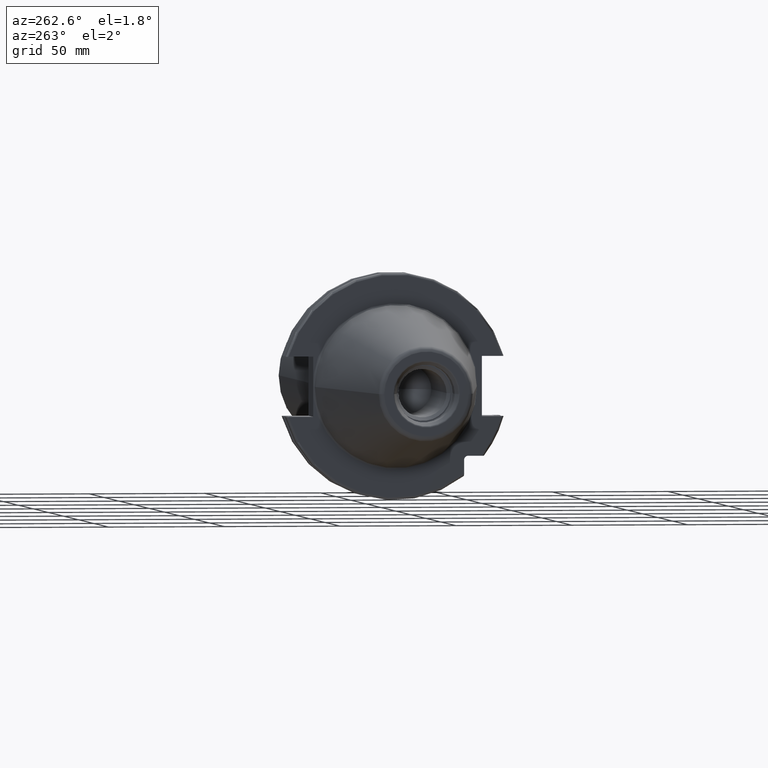
[diagram: clean part render]
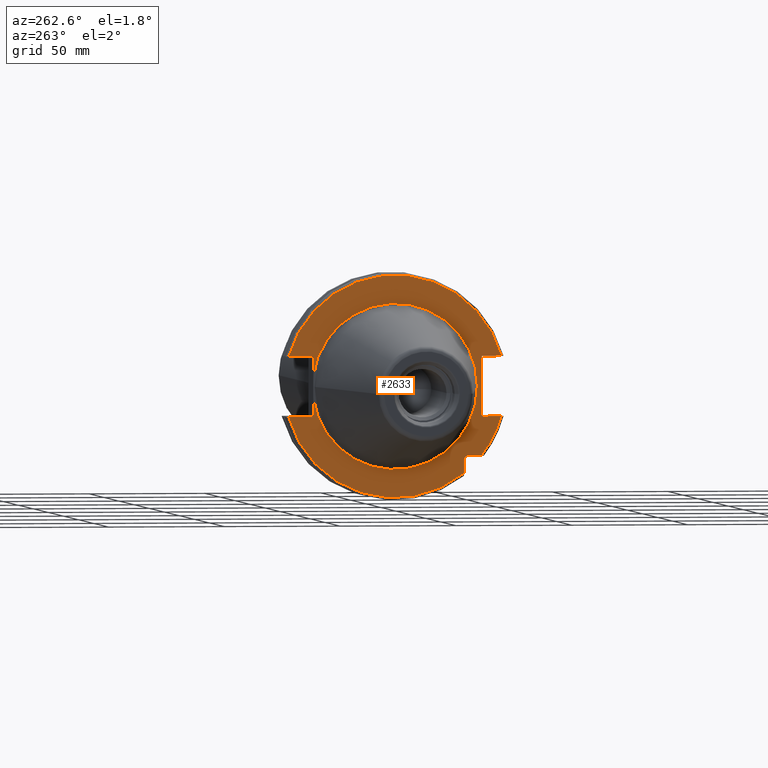
[diagram: same view with one face highlighted and labeled with its STEP entity id]
A machine part, auxiliary view. The second image highlights one B-rep face of the part: STEP entity #2633.
In plain terms, the highlighted planar face has unit normal (1, 0, 0).
Its self-contained STEP definition (entity closure, byte-faithful):
#117=CARTESIAN_POINT('',(3.2E0,0.E0,0.E0));
#118=DIRECTION('',(-1.E0,0.E0,0.E0));
#119=DIRECTION('',(0.E0,9.922698524245E-1,-1.240989120402E-1));
#120=AXIS2_PLACEMENT_3D('',#117,#118,#119);
#694=DIRECTION('',(0.E0,-1.E0,0.E0));
#695=VECTOR('',#694,5.653810627237E0);
#696=CARTESIAN_POINT('',(3.2E0,-3.16E1,-2.985E1));
#697=LINE('',#696,#695);
#698=DIRECTION('',(0.E0,0.E0,1.E0));
#699=VECTOR('',#698,5.653810627237E0);
#700=CARTESIAN_POINT('',(3.2E0,-2.985E1,-3.725381062724E1));
#701=LINE('',#700,#699);
#702=CARTESIAN_POINT('',(3.2E0,0.E0,0.E0));
#703=DIRECTION('',(-1.E0,0.E0,0.E0));
#704=DIRECTION('',(0.E0,9.627964123359E-1,-2.702278083268E-1));
#705=AXIS2_PLACEMENT_3D('',#702,#703,#704);
#707=DIRECTION('',(0.E0,-1.E0,0.E0));
#708=VECTOR('',#707,1.066149373389E1);
#709=CARTESIAN_POINT('',(3.2E0,4.596149373389E1,-1.29E1));
#710=LINE('',#709,#708);
#711=DIRECTION('',(0.E0,0.E0,-1.E0));
#712=VECTOR('',#711,8.485181204172E0);
#713=CARTESIAN_POINT('',(3.2E0,3.53E1,-4.414818795828E0));
#714=LINE('',#713,#712);
#715=DIRECTION('',(0.E0,0.E0,-1.E0));
#716=VECTOR('',#715,8.485181204172E0);
#717=CARTESIAN_POINT('',(3.2E0,3.53E1,1.29E1));
#718=LINE('',#717,#716);
#719=DIRECTION('',(0.E0,-1.E0,0.E0));
#720=VECTOR('',#719,1.066149373389E1);
#721=CARTESIAN_POINT('',(3.2E0,4.596149373389E1,1.29E1));
#722=LINE('',#721,#720);
#723=CARTESIAN_POINT('',(3.2E0,0.E0,0.E0));
#724=DIRECTION('',(1.E0,0.E0,0.E0));
#725=DIRECTION('',(0.E0,9.627964123359E-1,2.702278083268E-1));
#726=AXIS2_PLACEMENT_3D('',#723,#724,#725);
#728=DIRECTION('',(0.E0,1.E0,0.E0));
#729=VECTOR('',#728,8.461493733886E0);
#730=CARTESIAN_POINT('',(3.2E0,-4.596149373389E1,1.29E1));
#731=LINE('',#730,#729);
#732=DIRECTION('',(0.E0,0.E0,1.E0));
#733=VECTOR('',#732,2.58E1);
#734=CARTESIAN_POINT('',(3.2E0,-3.75E1,-1.29E1));
#735=LINE('',#734,#733);
#736=DIRECTION('',(0.E0,1.E0,0.E0));
#737=VECTOR('',#736,8.461493733886E0);
#738=CARTESIAN_POINT('',(3.2E0,-4.596149373389E1,-1.29E1));
#739=LINE('',#738,#737);
#740=CARTESIAN_POINT('',(3.2E0,0.E0,0.E0));
#741=DIRECTION('',(-1.E0,0.E0,0.E0));
#742=DIRECTION('',(0.E0,-7.803888060170E-1,-6.252945797329E-1));
#743=AXIS2_PLACEMENT_3D('',#740,#741,#742);
#754=CARTESIAN_POINT('',(3.2E0,-3.16E1,-3.16E1));
#755=DIRECTION('',(1.E0,0.E0,0.E0));
#756=DIRECTION('',(0.E0,1.E0,0.E0));
#757=AXIS2_PLACEMENT_3D('',#754,#755,#756);
#920=CARTESIAN_POINT('',(3.2E0,-3.725381062724E1,-2.985E1));
#1146=CARTESIAN_POINT('',(3.2E0,0.E0,0.E0));
#1147=DIRECTION('',(1.E0,0.E0,0.E0));
#1148=DIRECTION('',(0.E0,9.922698524245E-1,1.240989120402E-1));
#1149=AXIS2_PLACEMENT_3D('',#1146,#1147,#1148);
#1396=CARTESIAN_POINT('',(3.2E0,-3.5575E1,0.E0));
#1398=VERTEX_POINT('',#1396);
#1530=CARTESIAN_POINT('',(3.2E0,4.596149373389E1,1.29E1));
#1531=CARTESIAN_POINT('',(3.2E0,3.53E1,1.29E1));
#1532=VERTEX_POINT('',#1530);
#1533=VERTEX_POINT('',#1531);
#1534=CARTESIAN_POINT('',(3.2E0,3.53E1,4.414818795828E0));
#1535=VERTEX_POINT('',#1534);
#1536=CARTESIAN_POINT('',(3.2E0,3.53E1,-4.414818795828E0));
#1537=CARTESIAN_POINT('',(3.2E0,3.53E1,-1.29E1));
#1538=VERTEX_POINT('',#1536);
#1539=VERTEX_POINT('',#1537);
#1540=CARTESIAN_POINT('',(3.2E0,4.596149373389E1,-1.29E1));
#1541=VERTEX_POINT('',#1540);
#1542=CARTESIAN_POINT('',(3.2E0,-4.596149373389E1,-1.29E1));
#1543=CARTESIAN_POINT('',(3.2E0,-3.75E1,-1.29E1));
#1544=VERTEX_POINT('',#1542);
#1545=VERTEX_POINT('',#1543);
#1546=CARTESIAN_POINT('',(3.2E0,-3.75E1,1.29E1));
#1547=VERTEX_POINT('',#1546);
#1548=CARTESIAN_POINT('',(3.2E0,-4.596149373389E1,1.29E1));
#1549=VERTEX_POINT('',#1548);
#1581=CARTESIAN_POINT('',(3.2E0,-2.985E1,-3.725381062724E1));
#1582=VERTEX_POINT('',#1581);
#1587=CARTESIAN_POINT('',(3.2E0,-2.985E1,-3.16E1));
#1588=CARTESIAN_POINT('',(3.2E0,-3.16E1,-2.985E1));
#1589=VERTEX_POINT('',#1587);
#1590=VERTEX_POINT('',#1588);
#1609=VERTEX_POINT('',#920);
#2603=CARTESIAN_POINT('',(3.2E0,0.E0,0.E0));
#2604=DIRECTION('',(1.E0,0.E0,0.E0));
#2605=DIRECTION('',(0.E0,-1.E0,0.E0));
#2606=AXIS2_PLACEMENT_3D('',#2603,#2604,#2605);
#2607=PLANE('',#2606);
#2609=ORIENTED_EDGE('',*,*,#2608,.F.);
#2611=ORIENTED_EDGE('',*,*,#2610,.F.);
#2613=ORIENTED_EDGE('',*,*,#2612,.F.);
#2615=ORIENTED_EDGE('',*,*,#2614,.F.);
#2616=ORIENTED_EDGE('',*,*,#2330,.T.);
#2617=ORIENTED_EDGE('',*,*,#1854,.F.);
#2618=ORIENTED_EDGE('',*,*,#1829,.T.);
#2620=ORIENTED_EDGE('',*,*,#2619,.F.);
#2621=ORIENTED_EDGE('',*,*,#1849,.F.);
#2622=ORIENTED_EDGE('',*,*,#2400,.F.);
#2623=ORIENTED_EDGE('',*,*,#2598,.T.);
#2624=ORIENTED_EDGE('',*,*,#2458,.T.);
#2626=ORIENTED_EDGE('',*,*,#2625,.F.);
#2628=ORIENTED_EDGE('',*,*,#2627,.F.);
#2630=ORIENTED_EDGE('',*,*,#2629,.F.);
#2631=EDGE_LOOP('',(#2609,#2611,#2613,#2615,#2616,#2617,#2618,#2620,#2621,#2622,
#2623,#2624,#2626,#2628,#2630));
#2632=FACE_OUTER_BOUND('',#2631,.F.);
#2633=ADVANCED_FACE('',(#2632),#2607,.F.);
#121=CIRCLE('',#120,3.5575E1);
#706=CIRCLE('',#705,4.77375E1);
#727=CIRCLE('',#726,4.77375E1);
#744=CIRCLE('',#743,4.77375E1);
#758=CIRCLE('',#757,1.75E0);
#1150=CIRCLE('',#1149,3.5575E1);
#1829=EDGE_CURVE('',#1538,#1398,#121,.T.);
#1849=EDGE_CURVE('',#1533,#1535,#718,.T.);
#1854=EDGE_CURVE('',#1538,#1539,#714,.T.);
#2330=EDGE_CURVE('',#1541,#1539,#710,.T.);
#2400=EDGE_CURVE('',#1532,#1533,#722,.T.);
#2458=EDGE_CURVE('',#1549,#1547,#731,.T.);
#2598=EDGE_CURVE('',#1532,#1549,#727,.T.);
#2608=EDGE_CURVE('',#1590,#1609,#697,.T.);
#2610=EDGE_CURVE('',#1589,#1590,#758,.T.);
#2612=EDGE_CURVE('',#1582,#1589,#701,.T.);
#2614=EDGE_CURVE('',#1541,#1582,#706,.T.);
#2619=EDGE_CURVE('',#1535,#1398,#1150,.T.);
#2625=EDGE_CURVE('',#1545,#1547,#735,.T.);
#2627=EDGE_CURVE('',#1544,#1545,#739,.T.);
#2629=EDGE_CURVE('',#1609,#1544,#744,.T.);